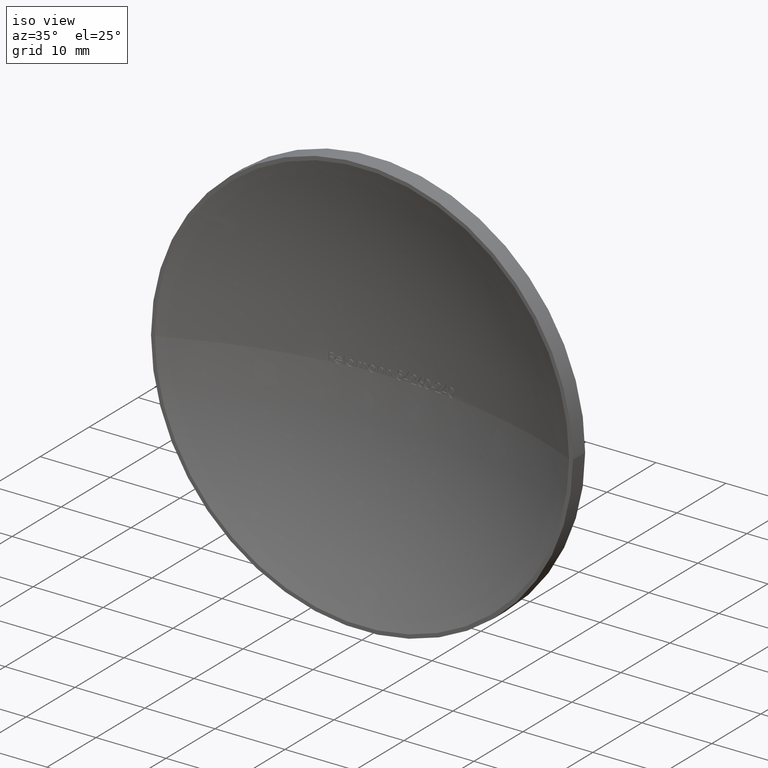
[diagram: clean part render]
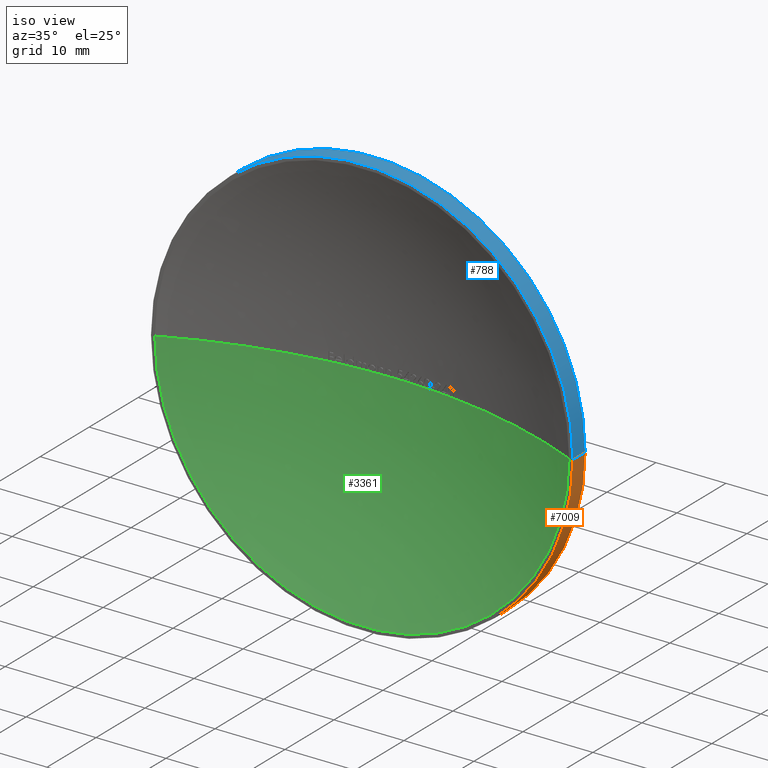
[diagram: same view with three faces highlighted in distinct colors, each labeled with its STEP entity id]
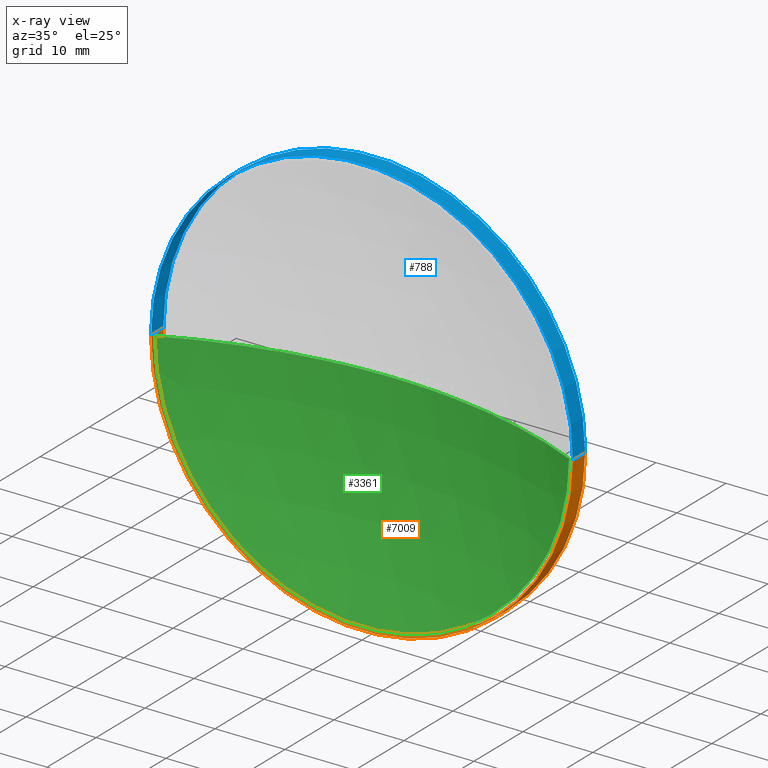
[diagram: x-ray of the same camera — body ghosted, the three highlighted faces saturated]
A machine part, iso view with three faces highlighted in distinct colors.
The next image is the same camera in x-ray (body ghosted, the three faces saturated) — at least one of them is partly hidden behind the body in this view.
Their STEP definitions:

[orange] entity #7009 — the highlighted cylindrical surface (partial cylindrical patch) has radius 30.15 mm, axis along (-0, -1, -0).
#357 = CARTESIAN_POINT ( 'NONE',  ( -30.15000000000003800, 6.500000000000230000, 3.692310099429274300E-015 ) ) ;
#377 = VECTOR ( 'NONE', #11874, 1000.000000000000000 ) ;
#419 = CARTESIAN_POINT ( 'NONE',  ( -30.15000000000010900, 4.747111756292559200E-013, 3.692310099429277500E-015 ) ) ;
#644 = EDGE_CURVE ( 'NONE', #5582, #7652, #9861, .T. ) ;
#654 = DIRECTION ( 'NONE',  ( 1.000000000000000000, -7.920025966713426600E-015, 0.0000000000000000000 ) ) ;
#686 = LINE ( 'NONE', #5067, #377 ) ;
#1200 = CYLINDRICAL_SURFACE ( 'NONE', #3360, 30.15000000000003800 ) ;
#1310 = CIRCLE ( 'NONE', #5299, 30.15000000000002000 ) ;
#1447 = ORIENTED_EDGE ( 'NONE', *, *, #11328, .F. ) ;
#1478 = DIRECTION ( 'NONE',  ( -7.920025966713426600E-015, -1.000000000000000000, -0.0000000000000000000 ) ) ;
#1965 = VECTOR ( 'NONE', #12309, 1000.000000000000000 ) ;
#3360 = AXIS2_PLACEMENT_3D ( 'NONE', #9065, #4063, #11121 ) ;
#3879 = ORIENTED_EDGE ( 'NONE', *, *, #12292, .T. ) ;
#4063 = DIRECTION ( 'NONE',  ( -7.920025966713426600E-015, -1.000000000000000000, -0.0000000000000000000 ) ) ;
#4182 = CARTESIAN_POINT ( 'NONE',  ( -3.168010386685173100E-014, 2.500000000000240700, 0.0000000000000000000 ) ) ;
#4389 = CIRCLE ( 'NONE', #12468, 30.15000000000005200 ) ;
#5067 = CARTESIAN_POINT ( 'NONE',  ( 30.15000000000003800, 6.499999999999753100, 0.0000000000000000000 ) ) ;
#5130 = DIRECTION ( 'NONE',  ( -7.920025966713426600E-015, -1.000000000000000000, -0.0000000000000000000 ) ) ;
#5291 = VERTEX_POINT ( 'NONE', #9368 ) ;
#5299 = AXIS2_PLACEMENT_3D ( 'NONE', #4182, #5130, #10182 ) ;
#5573 = CARTESIAN_POINT ( 'NONE',  ( -5.148016878363533900E-014, 2.359223927328457600E-013, 0.0000000000000000000 ) ) ;
#5582 = VERTEX_POINT ( 'NONE', #9519 ) ;
#6388 = VERTEX_POINT ( 'NONE', #8105 ) ;
#7009 = ADVANCED_FACE ( 'NONE', ( #10351 ), #1200, .T. ) ;
#7652 = VERTEX_POINT ( 'NONE', #419 ) ;
#7791 = ORIENTED_EDGE ( 'NONE', *, *, #11982, .T. ) ;
#8105 = CARTESIAN_POINT ( 'NONE',  ( 30.14999999999999900, -2.866390163564436000E-015, 0.0000000000000000000 ) ) ;
#9065 = CARTESIAN_POINT ( 'NONE',  ( 0.0000000000000000000, 6.499999999999992000, 0.0000000000000000000 ) ) ;
#9238 = EDGE_LOOP ( 'NONE', ( #9608, #7791, #3879, #1447 ) ) ;
#9368 = CARTESIAN_POINT ( 'NONE',  ( 30.14999999999998800, 2.500000000000001800, 0.0000000000000000000 ) ) ;
#9519 = CARTESIAN_POINT ( 'NONE',  ( -30.15000000000005200, 2.500000000000479600, 3.692310099429273600E-015 ) ) ;
#9608 = ORIENTED_EDGE ( 'NONE', *, *, #644, .F. ) ;
#9861 = LINE ( 'NONE', #357, #1965 ) ;
#10182 = DIRECTION ( 'NONE',  ( 1.000000000000000000, -7.925643741817744600E-015, 0.0000000000000000000 ) ) ;
#10351 = FACE_OUTER_BOUND ( 'NONE', #9238, .T. ) ;
#11121 = DIRECTION ( 'NONE',  ( 1.000000000000000000, -7.911259633393389300E-015, 0.0000000000000000000 ) ) ;
#11328 = EDGE_CURVE ( 'NONE', #7652, #6388, #4389, .T. ) ;
#11874 = DIRECTION ( 'NONE',  ( -7.920025966713426600E-015, -1.000000000000000000, -0.0000000000000000000 ) ) ;
#11982 = EDGE_CURVE ( 'NONE', #5582, #5291, #1310, .T. ) ;
#12292 = EDGE_CURVE ( 'NONE', #5291, #6388, #686, .T. ) ;
#12309 = DIRECTION ( 'NONE',  ( -7.920025966713426600E-015, -1.000000000000000000, -0.0000000000000000000 ) ) ;
#12468 = AXIS2_PLACEMENT_3D ( 'NONE', #5573, #1478, #654 ) ;

[blue] entity #788 — the highlighted cylindrical surface (partial cylindrical patch) has radius 30.15 mm, axis along (-0, -1, -0).
#329 = ORIENTED_EDGE ( 'NONE', *, *, #644, .T. ) ;
#357 = CARTESIAN_POINT ( 'NONE',  ( -30.15000000000003800, 6.500000000000230000, 3.692310099429274300E-015 ) ) ;
#377 = VECTOR ( 'NONE', #11874, 1000.000000000000000 ) ;
#419 = CARTESIAN_POINT ( 'NONE',  ( -30.15000000000010900, 4.747111756292559200E-013, 3.692310099429277500E-015 ) ) ;
#534 = AXIS2_PLACEMENT_3D ( 'NONE', #11966, #5035, #3065 ) ;
#644 = EDGE_CURVE ( 'NONE', #5582, #7652, #9861, .T. ) ;
#686 = LINE ( 'NONE', #5067, #377 ) ;
#788 = ADVANCED_FACE ( 'NONE', ( #10181 ), #3941, .T. ) ;
#1363 = AXIS2_PLACEMENT_3D ( 'NONE', #3979, #8891, #11900 ) ;
#1436 = EDGE_LOOP ( 'NONE', ( #8907, #329, #11580, #3680 ) ) ;
#1965 = VECTOR ( 'NONE', #12309, 1000.000000000000000 ) ;
#3065 = DIRECTION ( 'NONE',  ( 1.000000000000000000, -7.920025966713426600E-015, 0.0000000000000000000 ) ) ;
#3653 = EDGE_CURVE ( 'NONE', #6388, #7652, #10859, .T. ) ;
#3680 = ORIENTED_EDGE ( 'NONE', *, *, #12292, .F. ) ;
#3941 = CYLINDRICAL_SURFACE ( 'NONE', #7467, 30.15000000000003800 ) ;
#3979 = CARTESIAN_POINT ( 'NONE',  ( -3.168010386685173100E-014, 2.500000000000240700, 0.0000000000000000000 ) ) ;
#5035 = DIRECTION ( 'NONE',  ( -7.920025966713426600E-015, -1.000000000000000000, -0.0000000000000000000 ) ) ;
#5067 = CARTESIAN_POINT ( 'NONE',  ( 30.15000000000003800, 6.499999999999753100, 0.0000000000000000000 ) ) ;
#5222 = EDGE_CURVE ( 'NONE', #5291, #5582, #10215, .T. ) ;
#5291 = VERTEX_POINT ( 'NONE', #9368 ) ;
#5534 = DIRECTION ( 'NONE',  ( 1.000000000000000000, -7.911259633393389300E-015, 0.0000000000000000000 ) ) ;
#5582 = VERTEX_POINT ( 'NONE', #9519 ) ;
#5659 = DIRECTION ( 'NONE',  ( -7.920025966713426600E-015, -1.000000000000000000, -0.0000000000000000000 ) ) ;
#6388 = VERTEX_POINT ( 'NONE', #8105 ) ;
#6575 = CARTESIAN_POINT ( 'NONE',  ( 0.0000000000000000000, 6.499999999999992000, 0.0000000000000000000 ) ) ;
#7467 = AXIS2_PLACEMENT_3D ( 'NONE', #6575, #5659, #5534 ) ;
#7652 = VERTEX_POINT ( 'NONE', #419 ) ;
#8105 = CARTESIAN_POINT ( 'NONE',  ( 30.14999999999999900, -2.866390163564436000E-015, 0.0000000000000000000 ) ) ;
#8891 = DIRECTION ( 'NONE',  ( -7.920025966713426600E-015, -1.000000000000000000, -0.0000000000000000000 ) ) ;
#8907 = ORIENTED_EDGE ( 'NONE', *, *, #5222, .T. ) ;
#9368 = CARTESIAN_POINT ( 'NONE',  ( 30.14999999999998800, 2.500000000000001800, 0.0000000000000000000 ) ) ;
#9519 = CARTESIAN_POINT ( 'NONE',  ( -30.15000000000005200, 2.500000000000479600, 3.692310099429273600E-015 ) ) ;
#9861 = LINE ( 'NONE', #357, #1965 ) ;
#10181 = FACE_OUTER_BOUND ( 'NONE', #1436, .T. ) ;
#10215 = CIRCLE ( 'NONE', #1363, 30.15000000000002000 ) ;
#10859 = CIRCLE ( 'NONE', #534, 30.15000000000005200 ) ;
#11580 = ORIENTED_EDGE ( 'NONE', *, *, #3653, .F. ) ;
#11874 = DIRECTION ( 'NONE',  ( -7.920025966713426600E-015, -1.000000000000000000, -0.0000000000000000000 ) ) ;
#11900 = DIRECTION ( 'NONE',  ( 1.000000000000000000, -7.925643741817744600E-015, 0.0000000000000000000 ) ) ;
#11966 = CARTESIAN_POINT ( 'NONE',  ( -5.148016878363533900E-014, 2.359223927328457600E-013, 0.0000000000000000000 ) ) ;
#12292 = EDGE_CURVE ( 'NONE', #5291, #6388, #686, .T. ) ;
#12309 = DIRECTION ( 'NONE',  ( -7.920025966713426600E-015, -1.000000000000000000, -0.0000000000000000000 ) ) ;

[green] entity #3361 — the highlighted spherical surface has radius 70.6748 mm.
#12 = CIRCLE ( 'NONE', #3420, 29.60612267758144600 ) ;
#37 = AXIS2_PLACEMENT_3D ( 'NONE', #7601, #12365, #9501 ) ;
#55 = VERTEX_POINT ( 'NONE', #6366 ) ;
#60 = DIRECTION ( 'NONE',  ( 1.000000000000000000, 0.0000000000000000000, 0.0000000000000000000 ) ) ;
#69 = AXIS2_PLACEMENT_3D ( 'NONE', #1477, #6442, #8453 ) ;
#147 = AXIS2_PLACEMENT_3D ( 'NONE', #6127, #1375, #6170 ) ;
#177 = VERTEX_POINT ( 'NONE', #9717 ) ;
#193 = VERTEX_POINT ( 'NONE', #11828 ) ;
#201 = CARTESIAN_POINT ( 'NONE',  ( 0.7432971088068091000, 6.496086225058660600, -0.03002700844221619900 ) ) ;
#212 = DIRECTION ( 'NONE',  ( 0.0000000000000000000, -0.0000000000000000000, 1.000000000000000000 ) ) ;
#222 = CARTESIAN_POINT ( 'NONE',  ( -7.612335987580117100, 6.088842195093688400, -0.01696047008547008400 ) ) ;
#229 = EDGE_CURVE ( 'NONE', #7349, #5940, #10811, .T. ) ;
#234 = VERTEX_POINT ( 'NONE', #5775 ) ;
#238 = VERTEX_POINT ( 'NONE', #3903 ) ;
#246 = DIRECTION ( 'NONE',  ( 0.0000000000000000000, 0.0000000000000000000, 1.000000000000000000 ) ) ;
#280 = AXIS2_PLACEMENT_3D ( 'NONE', #10289, #3601, #6507 ) ;
#316 = ORIENTED_EDGE ( 'NONE', *, *, #11505, .T. ) ;
#326 = CARTESIAN_POINT ( 'NONE',  ( -7.597597577532804200, 6.090437716854105500, -0.01662985309535127500 ) ) ;
#352 = CARTESIAN_POINT ( 'NONE',  ( 6.979233440170952800, 6.154551347372693800, 5.741908295601966100E-015 ) ) ;
#362 = DIRECTION ( 'NONE',  ( 1.000000000000000000, 0.0000000000000000000, 0.0000000000000000000 ) ) ;
#390 = CIRCLE ( 'NONE', #1342, 70.67480769230762400 ) ;
#507 = CARTESIAN_POINT ( 'NONE',  ( 3.789778726380941700, 6.398321008282907000, -0.01938917905373024200 ) ) ;
#532 = CIRCLE ( 'NONE', #1929, 70.67480769230762400 ) ;
#663 = VERTEX_POINT ( 'NONE', #7242 ) ;
#766 = CIRCLE ( 'NONE', #4168, 70.67480769230762400 ) ;
#779 = CARTESIAN_POINT ( 'NONE',  ( 1.980006491678358300E-014, -64.17480769230762400, 0.0000000000000000000 ) ) ;
#893 = CARTESIAN_POINT ( 'NONE',  ( 1.980006491678358300E-014, -64.17480769230762400, 0.0000000000000000000 ) ) ;
#927 = EDGE_CURVE ( 'NONE', #12748, #11778, #6079, .T. ) ;
#928 = CIRCLE ( 'NONE', #10319, 70.67480769230762400 ) ;
#966 = CARTESIAN_POINT ( 'NONE',  ( 0.8666965366530248200, 6.494685670802756100, -0.03126080460573747000 ) ) ;
#983 = AXIS2_PLACEMENT_3D ( 'NONE', #10823, #5869, #12729 ) ;
#996 = B_SPLINE_CURVE_WITH_KNOTS ( 'NONE', 3,
 ( #11571, #6520, #11531, #5479 ),
 .UNSPECIFIED., .F., .F.,
 ( 4, 4 ),
 ( 0.8208945495405529600, 1.000000000000000000 ),
 .UNSPECIFIED. ) ;
#1098 = CARTESIAN_POINT ( 'NONE',  ( 0.9605257596267269300, 6.493478596770718700, -0.01174405390490025100 ) ) ;
#1115 = VERTEX_POINT ( 'NONE', #1932 ) ;
#1147 = CARTESIAN_POINT ( 'NONE',  ( 0.6348561559434808800, 6.497148484366501700, 8.342417999089791100E-006 ) ) ;
#1218 = CARTESIAN_POINT ( 'NONE',  ( 1.980006491678358300E-014, -64.17480769230762400, 0.0000000000000000000 ) ) ;
#1252 = EDGE_CURVE ( 'NONE', #10793, #12748, #2874, .T. ) ;
#1263 = CARTESIAN_POINT ( 'NONE',  ( 2.145499465811979300, 6.467426660711428400, 4.194215356583184500E-015 ) ) ;
#1277 = CARTESIAN_POINT ( 'NONE',  ( -7.469789810218279600, 6.104141256827904100, 2.134701409049082200E-006 ) ) ;
#1303 = CARTESIAN_POINT ( 'NONE',  ( -5.918559522339771600, 6.251747048900874400, -0.005846938975923391000 ) ) ;
#1342 = AXIS2_PLACEMENT_3D ( 'NONE', #4948, #8909, #7000 ) ;
#1361 = CARTESIAN_POINT ( 'NONE',  ( -7.612335987580117100, 6.088842195093688400, -0.01696047008547008400 ) ) ;
#1373 = DIRECTION ( 'NONE',  ( 1.000000000000000000, 0.0000000000000000000, 0.0000000000000000000 ) ) ;
#1375 = DIRECTION ( 'NONE',  ( 0.0000000000000000000, -0.0000000000000000000, 1.000000000000000000 ) ) ;
#1449 = DIRECTION ( 'NONE',  ( 0.0000000000000000000, 0.0000000000000000000, 1.000000000000000000 ) ) ;
#1477 = CARTESIAN_POINT ( 'NONE',  ( 1.980006491678358300E-014, -64.17480769230762400, 0.0000000000000000000 ) ) ;
#1504 = EDGE_CURVE ( 'NONE', #6167, #9530, #12038, .T. ) ;
#1588 = EDGE_CURVE ( 'NONE', #5552, #4725, #7682, .T. ) ;
#1595 = CARTESIAN_POINT ( 'NONE',  ( -3.807625534188031400, 6.397357005511181200, 5.761731707072241700E-015 ) ) ;
#1605 = CARTESIAN_POINT ( 'NONE',  ( 8.447134629730895100, 5.993396655405951500, -0.02279006732365385100 ) ) ;
#1673 = CARTESIAN_POINT ( 'NONE',  ( 8.719373689908712400, 5.960069083712832900, 1.988234235012545900E-005 ) ) ;
#1774 = DIRECTION ( 'NONE',  ( 0.0000000000000000000, -0.0000000000000000000, 1.000000000000000000 ) ) ;
#1859 = DIRECTION ( 'NONE',  ( 1.000000000000000000, 0.0000000000000000000, 0.0000000000000000000 ) ) ;
#1860 = ORIENTED_EDGE ( 'NONE', *, *, #6062, .F. ) ;
#1882 = ORIENTED_EDGE ( 'NONE', *, *, #10819, .T. ) ;
#1906 = DIRECTION ( 'NONE',  ( 0.0000000000000000000, -0.0000000000000000000, 1.000000000000000000 ) ) ;
#1920 = CARTESIAN_POINT ( 'NONE',  ( -3.066134982638889300, 6.433456490827175000, -0.01696047008546997700 ) ) ;
#1921 = CARTESIAN_POINT ( 'NONE',  ( 0.9287028325944867200, 6.493901937073268900, -0.02055943171163479600 ) ) ;
#1929 = AXIS2_PLACEMENT_3D ( 'NONE', #9219, #10230, #11234 ) ;
#1932 = CARTESIAN_POINT ( 'NONE',  ( 0.8021772335737318300, 6.495439253634329700, -0.03392094017094020300 ) ) ;
#1962 = CARTESIAN_POINT ( 'NONE',  ( -3.159407415994759400, 6.429358067632239000, -0.01013932095497769800 ) ) ;
#1995 = CARTESIAN_POINT ( 'NONE',  ( -6.775707799145292800, 6.174451196221286700, 4.722542179420358400E-015 ) ) ;
#2007 = ORIENTED_EDGE ( 'NONE', *, *, #3539, .F. ) ;
#2008 = AXIS2_PLACEMENT_3D ( 'NONE', #5157, #10087, #8096 ) ;
#2024 = CARTESIAN_POINT ( 'NONE',  ( 4.071597726318756800, 6.382619445798855700, 1.734177897601664500E-006 ) ) ;
#2044 = DIRECTION ( 'NONE',  ( 0.0000000000000000000, 0.0000000000000000000, 1.000000000000000000 ) ) ;
#2063 = CARTESIAN_POINT ( 'NONE',  ( 3.961710103109255900, 6.388870031433351700, -0.03024174569911977600 ) ) ;
#2099 = AXIS2_PLACEMENT_3D ( 'NONE', #8088, #9070, #6120 ) ;
#2120 = CARTESIAN_POINT ( 'NONE',  ( 0.6348561559434808800, 6.497148484366501700, 8.342417999089791100E-006 ) ) ;
#2124 = CIRCLE ( 'NONE', #7027, 70.67480769230762400 ) ;
#2161 = DIRECTION ( 'NONE',  ( -1.000000000000000000, 0.0000000000000000000, 1.224646799147353200E-016 ) ) ;
#2186 = EDGE_CURVE ( 'NONE', #11778, #2950, #2668, .T. ) ;
#2215 = DIRECTION ( 'NONE',  ( -1.224646799147353200E-016, 9.699234449299519100E-031, -1.000000000000000000 ) ) ;
#2250 = VERTEX_POINT ( 'NONE', #9588 ) ;
#2253 = CARTESIAN_POINT ( 'NONE',  ( 1.980006491678358300E-014, -64.17480769230762400, 0.0000000000000000000 ) ) ;
#2312 = DIRECTION ( 'NONE',  ( 0.0000000000000000000, -0.0000000000000000000, 1.000000000000000000 ) ) ;
#2340 = CARTESIAN_POINT ( 'NONE',  ( -5.895896261122464600, 6.253644220154492400, -2.686373471526520200E-006 ) ) ;
#2359 = VERTEX_POINT ( 'NONE', #1995 ) ;
#2374 = CARTESIAN_POINT ( 'NONE',  ( -3.926348824786320500, 6.390851287473492600, 2.404195260305623200E-016 ) ) ;
#2407 = DIRECTION ( 'NONE',  ( 1.000000000000000000, 0.0000000000000000000, 0.0000000000000000000 ) ) ;
#2458 = AXIS2_PLACEMENT_3D ( 'NONE', #1218, #10986, #5003 ) ;
#2481 = CARTESIAN_POINT ( 'NONE',  ( 8.719373689908712400, 5.960069083712832900, 1.988234235012545900E-005 ) ) ;
#2510 = DIRECTION ( 'NONE',  ( 0.0000000000000000000, 0.0000000000000000000, 1.000000000000000000 ) ) ;
#2527 = ORIENTED_EDGE ( 'NONE', *, *, #10238, .T. ) ;
#2539 = VERTEX_POINT ( 'NONE', #10191 ) ;
#2578 = CARTESIAN_POINT ( 'NONE',  ( 29.60612267758139300, -1.467955616396510900E-016, -3.625704337226327700E-015 ) ) ;
#2586 = CARTESIAN_POINT ( 'NONE',  ( 1.980006491678358300E-014, -64.17480769230762400, 0.0000000000000000000 ) ) ;
#2668 = B_SPLINE_CURVE_WITH_KNOTS ( 'NONE', 3,
 ( #1920, #9702, #1962, #3930 ),
 .UNSPECIFIED., .F., .F.,
 ( 4, 4 ),
 ( 0.0000000000000000000, 0.1699217220953719000 ),
 .UNSPECIFIED. ) ;
#2719 = CARTESIAN_POINT ( 'NONE',  ( -6.034217247596139100, 6.241925950314077400, -0.01696047008547018800 ) ) ;
#2729 = CIRCLE ( 'NONE', #6434, 70.67480769230762400 ) ;
#2743 = CARTESIAN_POINT ( 'NONE',  ( -5.520633012820501200, 6.284053024300767700, 5.752481216544243100E-015 ) ) ;
#2748 = CARTESIAN_POINT ( 'NONE',  ( 8.557882194845097600, 5.979949409785145800, -0.03392094017093954400 ) ) ;
#2749 = AXIS2_PLACEMENT_3D ( 'NONE', #9664, #12800, #4700 ) ;
#2796 = ORIENTED_EDGE ( 'NONE', *, *, #5058, .T. ) ;
#2824 = ORIENTED_EDGE ( 'NONE', *, *, #6905, .T. ) ;
#2863 = CIRCLE ( 'NONE', #5866, 70.67480769230762400 ) ;
#2874 = CIRCLE ( 'NONE', #8873, 70.67480769230762400 ) ;
#2912 = ORIENTED_EDGE ( 'NONE', *, *, #3421, .T. ) ;
#2922 = CARTESIAN_POINT ( 'NONE',  ( 6.080328525641038900, 6.237961372436162200, 3.142820007155299600E-016 ) ) ;
#2923 = VERTEX_POINT ( 'NONE', #3577 ) ;
#2950 = VERTEX_POINT ( 'NONE', #5431 ) ;
#3000 = CARTESIAN_POINT ( 'NONE',  ( 4.044990298365578800, 6.384154928913808600, -0.01128604861973320400 ) ) ;
#3047 = VERTEX_POINT ( 'NONE', #2743 ) ;
#3051 = DIRECTION ( 'NONE',  ( 1.000000000000000000, 0.0000000000000000000, 0.0000000000000000000 ) ) ;
#3074 = CARTESIAN_POINT ( 'NONE',  ( 1.980006491678358300E-014, -64.17480769230762400, 0.0000000000000000000 ) ) ;
#3126 = B_SPLINE_CURVE_WITH_KNOTS ( 'NONE', 3,
 ( #2748, #8570, #1605, #3735 ),
 .UNSPECIFIED., .F., .F.,
 ( 4, 4 ),
 ( 0.0000000000000000000, 0.1799260564459110300 ),
 .UNSPECIFIED. ) ;
#3138 = EDGE_CURVE ( 'NONE', #1115, #3706, #4065, .T. ) ;
#3173 = CIRCLE ( 'NONE', #11864, 70.67480769230762400 ) ;
#3208 = EDGE_CURVE ( 'NONE', #2950, #9823, #12096, .T. ) ;
#3234 = ORIENTED_EDGE ( 'NONE', *, *, #1252, .T. ) ;
#3243 = CARTESIAN_POINT ( 'NONE',  ( 1.980006491678358300E-014, -64.17480769230762400, 0.0000000000000000000 ) ) ;
#3253 = CARTESIAN_POINT ( 'NONE',  ( -7.582461841575047300, 6.092072800589575000, -0.01618391102057933600 ) ) ;
#3258 = CARTESIAN_POINT ( 'NONE',  ( 0.7312330698839069100, 6.496212959107993800, -0.02844723811180820500 ) ) ;
#3285 = EDGE_CURVE ( 'NONE', #5593, #3706, #8987, .T. ) ;
#3303 = CIRCLE ( 'NONE', #12715, 70.67480769230762400 ) ;
#3317 = CARTESIAN_POINT ( 'NONE',  ( 1.980006491678358300E-014, -64.17480769230762400, 0.0000000000000000000 ) ) ;
#3332 = CIRCLE ( 'NONE', #12275, 70.67480769230762400 ) ;
#3347 = DIRECTION ( 'NONE',  ( 1.000000000000000000, 0.0000000000000000000, 0.0000000000000000000 ) ) ;
#3361 = ADVANCED_FACE ( 'NONE', ( #5250 ), #7294, .F. ) ;
#3370 = CARTESIAN_POINT ( 'NONE',  ( -6.018970610495895100, 6.243232564667778200, -0.01660703882190717900 ) ) ;
#3387 = CARTESIAN_POINT ( 'NONE',  ( -7.491028658071068800, 6.101883950059564300, -0.005539370486328064700 ) ) ;
#3402 = CIRCLE ( 'NONE', #7420, 70.67480769230762400 ) ;
#3420 = AXIS2_PLACEMENT_3D ( 'NONE', #10807, #12709, #10674 ) ;
#3421 = EDGE_CURVE ( 'NONE', #193, #11004, #12, .T. ) ;
#3455 = EDGE_CURVE ( 'NONE', #12322, #5940, #3402, .T. ) ;
#3485 = VERTEX_POINT ( 'NONE', #4866 ) ;
#3526 = CARTESIAN_POINT ( 'NONE',  ( 3.832672759743563700, 6.395997221543864500, -0.02772034739002827600 ) ) ;
#3539 = EDGE_CURVE ( 'NONE', #663, #9942, #8053, .T. ) ;
#3577 = CARTESIAN_POINT ( 'NONE',  ( 4.071597726318756800, 6.382619445798855700, 1.734177897601664500E-006 ) ) ;
#3579 = CARTESIAN_POINT ( 'NONE',  ( 5.752187931813008700E-013, 6.499999999999992000, 0.0000000000000000000 ) ) ;
#3599 = B_SPLINE_CURVE_WITH_KNOTS ( 'NONE', 3,
 ( #7328, #11366, #5392, #5215 ),
 .UNSPECIFIED., .F., .F.,
 ( 4, 4 ),
 ( 0.0000000000000000000, 0.1807836206128917400 ),
 .UNSPECIFIED. ) ;
#3601 = DIRECTION ( 'NONE',  ( -1.224646799147353200E-016, 9.699234449299519100E-031, -1.000000000000000000 ) ) ;
#3681 = VERTEX_POINT ( 'NONE', #10969 ) ;
#3694 = ORIENTED_EDGE ( 'NONE', *, *, #4530, .T. ) ;
#3706 = VERTEX_POINT ( 'NONE', #2120 ) ;
#3730 = ORIENTED_EDGE ( 'NONE', *, *, #229, .F. ) ;
#3735 = CARTESIAN_POINT ( 'NONE',  ( 8.397072076991543500, 5.999387096541195100, 7.579719683355627600E-006 ) ) ;
#3811 = CIRCLE ( 'NONE', #11256, 70.67480769230762400 ) ;
#3855 = DIRECTION ( 'NONE',  ( 1.000000000000000000, 0.0000000000000000000, 0.0000000000000000000 ) ) ;
#3891 = ORIENTED_EDGE ( 'NONE', *, *, #7541, .T. ) ;
#3903 = CARTESIAN_POINT ( 'NONE',  ( -1.551883012820509700, 6.482959760812367900, 9.502542821512497700E-017 ) ) ;
#3917 = CARTESIAN_POINT ( 'NONE',  ( -3.066134982638889300, 6.433456490827175000, -0.01696047008546997700 ) ) ;
#3930 = CARTESIAN_POINT ( 'NONE',  ( -3.199807662969143900, 6.427526980238331700, -3.062719859035654400E-008 ) ) ;
#3958 = EDGE_CURVE ( 'NONE', #6524, #10793, #10686, .T. ) ;
#3977 = CIRCLE ( 'NONE', #7106, 70.67480769230762400 ) ;
#4046 = VERTEX_POINT ( 'NONE', #4502 ) ;
#4065 = B_SPLINE_CURVE_WITH_KNOTS ( 'NONE', 3,
 ( #4936, #7210, #12028, #201, #3258, #4159, #7078, #1147 ),
 .UNSPECIFIED., .F., .F.,
 ( 4, 2, 2, 4 ),
 ( 0.0000000000000000000, 0.07062300574870188100, 0.1412460114974037600, 0.2824920229948075200 ),
 .UNSPECIFIED. ) ;
#4132 = CIRCLE ( 'NONE', #37, 70.67480769230762400 ) ;
#4136 = DIRECTION ( 'NONE',  ( 0.0000000000000000000, -0.0000000000000000000, 1.000000000000000000 ) ) ;
#4159 = CARTESIAN_POINT ( 'NONE',  ( 0.6866697530600167600, 6.496667753425557900, -0.01999454976517739700 ) ) ;
#4168 = AXIS2_PLACEMENT_3D ( 'NONE', #3317, #2510, #6482 ) ;
#4174 = CARTESIAN_POINT ( 'NONE',  ( 1.980006491678358300E-014, -64.17480769230762400, 0.0000000000000000000 ) ) ;
#4189 = EDGE_CURVE ( 'NONE', #7621, #12188, #928, .T. ) ;
#4221 = EDGE_CURVE ( 'NONE', #11304, #2250, #11318, .T. ) ;
#4224 = CARTESIAN_POINT ( 'NONE',  ( -5.941301666843438400, 6.249831626294389200, -0.01010928989915303400 ) ) ;
#4338 = DIRECTION ( 'NONE',  ( 0.0000000000000000000, -0.0000000000000000000, 1.000000000000000000 ) ) ;
#4356 = EDGE_CURVE ( 'NONE', #663, #234, #766, .T. ) ;
#4361 = DIRECTION ( 'NONE',  ( 1.000000000000000000, 0.0000000000000000000, 0.0000000000000000000 ) ) ;
#4366 = ORIENTED_EDGE ( 'NONE', *, *, #4941, .T. ) ;
#4367 = CARTESIAN_POINT ( 'NONE',  ( 1.980006491678358300E-014, -64.17480769230762400, 0.0000000000000000000 ) ) ;
#4373 = CARTESIAN_POINT ( 'NONE',  ( -6.127789460059586800, 6.233858368988970600, -0.01005654314054566100 ) ) ;
#4382 = CARTESIAN_POINT ( 'NONE',  ( -3.066134982638889300, 6.433456490827175000, -0.01696047008546997700 ) ) ;
#4421 = DIRECTION ( 'NONE',  ( 1.000000000000000000, 0.0000000000000000000, 0.0000000000000000000 ) ) ;
#4502 = CARTESIAN_POINT ( 'NONE',  ( -5.130542200854698400, 6.313531620446177300, 5.754887941105098200E-015 ) ) ;
#4517 = ORIENTED_EDGE ( 'NONE', *, *, #9291, .T. ) ;
#4530 = EDGE_CURVE ( 'NONE', #12188, #6524, #7581, .T. ) ;
#4586 = AXIS2_PLACEMENT_3D ( 'NONE', #5204, #6220, #11137 ) ;
#4610 = CIRCLE ( 'NONE', #10838, 70.67480769230762400 ) ;
#4659 = AXIS2_PLACEMENT_3D ( 'NONE', #12120, #8349, #1373 ) ;
#4671 = ORIENTED_EDGE ( 'NONE', *, *, #10538, .T. ) ;
#4683 = CARTESIAN_POINT ( 'NONE',  ( 1.980006491678358300E-014, -64.17480769230762400, 0.0000000000000000000 ) ) ;
#4700 = DIRECTION ( 'NONE',  ( -1.000000000000000000, 7.854446731985910300E-015, 0.0000000000000000000 ) ) ;
#4725 = VERTEX_POINT ( 'NONE', #12563 ) ;
#4731 = CIRCLE ( 'NONE', #4586, 70.67480769230762400 ) ;
#4763 = EDGE_CURVE ( 'NONE', #12090, #9942, #3126, .T. ) ;
#4775 = CARTESIAN_POINT ( 'NONE',  ( -2.927784680547629700, 6.439330469870645500, 8.162212446696865900E-007 ) ) ;
#4857 = B_SPLINE_CURVE_WITH_KNOTS ( 'NONE', 3,
 ( #1277, #3387, #9324, #8210, #9196, #3253, #10199, #326, #10244, #1361 ),
 .UNSPECIFIED., .F., .F.,
 ( 4, 2, 2, 2, 4 ),
 ( 0.7366951702556031600, 0.8683475851277967500, 0.9341737925638962100, 0.9670868962819481100, 1.000000000000000000 ),
 .UNSPECIFIED. ) ;
#4863 = CARTESIAN_POINT ( 'NONE',  ( 1.980006491678358300E-014, -64.17480769230762400, 0.0000000000000000000 ) ) ;
#4866 = CARTESIAN_POINT ( 'NONE',  ( -0.3137686965811895000, 6.499303490994204700, 4.346753993657812300E-015 ) ) ;
#4903 = CIRCLE ( 'NONE', #5931, 70.67480769230762400 ) ;
#4918 = CARTESIAN_POINT ( 'NONE',  ( 1.980006491678358300E-014, -64.17480769230762400, 0.0000000000000000000 ) ) ;
#4920 = AXIS2_PLACEMENT_3D ( 'NONE', #4863, #1906, #9911 ) ;
#4936 = CARTESIAN_POINT ( 'NONE',  ( 0.8021772335737318300, 6.495439253634329700, -0.03392094017094020300 ) ) ;
#4941 = EDGE_CURVE ( 'NONE', #11637, #2250, #6784, .T. ) ;
#4948 = CARTESIAN_POINT ( 'NONE',  ( 1.980006491678358300E-014, -64.17480769230762400, 0.0000000000000000000 ) ) ;
#4989 = ORIENTED_EDGE ( 'NONE', *, *, #1504, .T. ) ;
#4991 = CARTESIAN_POINT ( 'NONE',  ( -2.973094829590620300, 6.437440509297275100, -0.01009264785247987800 ) ) ;
#5003 = DIRECTION ( 'NONE',  ( -1.000000000000000000, 0.0000000000000000000, 1.224646799147353200E-016 ) ) ;
#5014 = EDGE_CURVE ( 'NONE', #11304, #6186, #4610, .T. ) ;
#5024 = CARTESIAN_POINT ( 'NONE',  ( 3.934374695964648600, 6.390397152729354600, -0.03246073347867449400 ) ) ;
#5058 = EDGE_CURVE ( 'NONE', #11689, #10567, #11729, .T. ) ;
#5068 = CARTESIAN_POINT ( 'NONE',  ( -1.433159722222218300, 6.485467537521924600, 5.768925325805451100E-015 ) ) ;
#5069 = CARTESIAN_POINT ( 'NONE',  ( -5.895896261122464600, 6.253644220154492400, -2.686373471526520200E-006 ) ) ;
#5087 = AXIS2_PLACEMENT_3D ( 'NONE', #7382, #2312, #12279 ) ;
#5129 = ORIENTED_EDGE ( 'NONE', *, *, #11246, .T. ) ;
#5157 = CARTESIAN_POINT ( 'NONE',  ( 1.980006491678358300E-014, -64.17480769230762400, 0.0000000000000000000 ) ) ;
#5167 = CIRCLE ( 'NONE', #6278, 70.67480769230762400 ) ;
#5196 = CARTESIAN_POINT ( 'NONE',  ( 1.980006491678358300E-014, -64.17480769230762400, 0.0000000000000000000 ) ) ;
#5203 = CARTESIAN_POINT ( 'NONE',  ( 1.980006491678358300E-014, -64.17480769230762400, 0.0000000000000000000 ) ) ;
#5204 = CARTESIAN_POINT ( 'NONE',  ( 1.980006491678358300E-014, -64.17480769230762400, 0.0000000000000000000 ) ) ;
#5215 = CARTESIAN_POINT ( 'NONE',  ( -7.752145874483282700, 6.073556293597578200, 3.697858070267607500E-007 ) ) ;
#5220 = DIRECTION ( 'NONE',  ( 1.000000000000000000, 0.0000000000000000000, 0.0000000000000000000 ) ) ;
#5242 = AXIS2_PLACEMENT_3D ( 'NONE', #4174, #10174, #2161 ) ;
#5250 = FACE_OUTER_BOUND ( 'NONE', #6262, .T. ) ;
#5254 = B_SPLINE_CURVE_WITH_KNOTS ( 'NONE', 3,
 ( #2024, #3000, #6001, #6996, #2063, #11003, #5024, #11993, #6041, #10824 ),
 .UNSPECIFIED., .F., .F.,
 ( 4, 2, 2, 2, 4 ),
 ( 0.7312959206653617500, 0.8656479603326788800, 0.9328239801663375000, 0.9664119900831686900, 1.000000000000000000 ),
 .UNSPECIFIED. ) ;
#5274 = CARTESIAN_POINT ( 'NONE',  ( 4.733604537876107800, 6.341299841635783500, 8.809292103639234900E-006 ) ) ;
#5282 = DIRECTION ( 'NONE',  ( 0.0000000000000000000, 0.0000000000000000000, 1.000000000000000000 ) ) ;
#5287 = CARTESIAN_POINT ( 'NONE',  ( -7.469789810218279600, 6.104141256827904100, 2.134701409049082200E-006 ) ) ;
#5300 = EDGE_CURVE ( 'NONE', #2359, #177, #4132, .T. ) ;
#5315 = ORIENTED_EDGE ( 'NONE', *, *, #10133, .F. ) ;
#5322 = VERTEX_POINT ( 'NONE', #12281 ) ;
#5392 = CARTESIAN_POINT ( 'NONE',  ( -7.711050299521907000, 6.078091572032002800, -0.01015793486208855000 ) ) ;
#5421 = CARTESIAN_POINT ( 'NONE',  ( -6.034217247596139100, 6.241925950314077400, -0.01696047008547018800 ) ) ;
#5431 = CARTESIAN_POINT ( 'NONE',  ( -3.199807662969143900, 6.427526980238331700, -3.062719859035654400E-008 ) ) ;
#5470 = CARTESIAN_POINT ( 'NONE',  ( 3.738124019583524600, 6.401072499019553800, 1.006120926000910200E-006 ) ) ;
#5479 = CARTESIAN_POINT ( 'NONE',  ( 4.894420656383560200, 6.330312250522399400, -0.03392094017094027900 ) ) ;
#5552 = VERTEX_POINT ( 'NONE', #12578 ) ;
#5593 = VERTEX_POINT ( 'NONE', #3579 ) ;
#5648 = EDGE_CURVE ( 'NONE', #7349, #5552, #996, .T. ) ;
#5695 = DIRECTION ( 'NONE',  ( 1.000000000000000000, 0.0000000000000000000, 0.0000000000000000000 ) ) ;
#5724 = CARTESIAN_POINT ( 'NONE',  ( 1.980006491678358300E-014, -64.17480769230762400, 0.0000000000000000000 ) ) ;
#5729 = ORIENTED_EDGE ( 'NONE', *, *, #5890, .T. ) ;
#5756 = CARTESIAN_POINT ( 'NONE',  ( 8.397072076991543500, 5.999387096541195100, 7.579719683355627600E-006 ) ) ;
#5772 = ORIENTED_EDGE ( 'NONE', *, *, #8449, .T. ) ;
#5775 = CARTESIAN_POINT ( 'NONE',  ( 7.725494123931635000, 6.076492529722157700, -4.730500825351932100E-016 ) ) ;
#5823 = ORIENTED_EDGE ( 'NONE', *, *, #4189, .T. ) ;
#5859 = ORIENTED_EDGE ( 'NONE', *, *, #7112, .T. ) ;
#5866 = AXIS2_PLACEMENT_3D ( 'NONE', #2253, #12015, #9053 ) ;
#5869 = DIRECTION ( 'NONE',  ( -1.224646799147353200E-016, 9.699234449299519100E-031, -1.000000000000000000 ) ) ;
#5873 = VERTEX_POINT ( 'NONE', #8006 ) ;
#5890 = EDGE_CURVE ( 'NONE', #2923, #11689, #5254, .T. ) ;
#5931 = AXIS2_PLACEMENT_3D ( 'NONE', #6325, #7335, #10279 ) ;
#5935 = DIRECTION ( 'NONE',  ( 1.000000000000000000, 0.0000000000000000000, 0.0000000000000000000 ) ) ;
#5940 = VERTEX_POINT ( 'NONE', #2922 ) ;
#5959 = CARTESIAN_POINT ( 'NONE',  ( 1.980006491678358300E-014, -64.17480769230762400, 0.0000000000000000000 ) ) ;
#5964 = CARTESIAN_POINT ( 'NONE',  ( -6.167859163069798500, 6.230347966396641900, -2.520397770066697300E-006 ) ) ;
#6001 = CARTESIAN_POINT ( 'NONE',  ( 4.016551208454215400, 6.385777272421858400, -0.02016231639002420300 ) ) ;
#6041 = CARTESIAN_POINT ( 'NONE',  ( 3.912126228332885700, 6.391633807047139900, -0.03358536255982373000 ) ) ;
#6061 = DIRECTION ( 'NONE',  ( -1.224646799147353200E-016, 9.699234449299519100E-031, -1.000000000000000000 ) ) ;
#6062 = EDGE_CURVE ( 'NONE', #2923, #4725, #4903, .T. ) ;
#6064 = CARTESIAN_POINT ( 'NONE',  ( 1.980006491678358300E-014, -64.17480769230762400, 0.0000000000000000000 ) ) ;
#6079 = B_SPLINE_CURVE_WITH_KNOTS ( 'NONE', 3,
 ( #8915, #7973, #4991, #9047, #8058, #11014, #12008, #3917 ),
 .UNSPECIFIED., .F., .F.,
 ( 4, 2, 2, 4 ),
 ( 0.6915284463244284500, 0.8457642231622127800, 0.9228821115811063300, 1.000000000000000000 ),
 .UNSPECIFIED. ) ;
#6105 = VERTEX_POINT ( 'NONE', #2481 ) ;
#6120 = DIRECTION ( 'NONE',  ( 1.000000000000000000, 0.0000000000000000000, 0.0000000000000000000 ) ) ;
#6127 = CARTESIAN_POINT ( 'NONE',  ( 1.980006491678358300E-014, -64.17480769230762400, 0.0000000000000000000 ) ) ;
#6144 = ORIENTED_EDGE ( 'NONE', *, *, #10544, .T. ) ;
#6167 = VERTEX_POINT ( 'NONE', #7378 ) ;
#6170 = DIRECTION ( 'NONE',  ( 1.000000000000000000, 0.0000000000000000000, 0.0000000000000000000 ) ) ;
#6174 = DIRECTION ( 'NONE',  ( 1.000000000000000000, 0.0000000000000000000, 0.0000000000000000000 ) ) ;
#6186 = VERTEX_POINT ( 'NONE', #9654 ) ;
#6204 = CARTESIAN_POINT ( 'NONE',  ( 4.783619123127386400, 6.337942527504435700, -0.02276715584627344800 ) ) ;
#6217 = ORIENTED_EDGE ( 'NONE', *, *, #8717, .T. ) ;
#6220 = DIRECTION ( 'NONE',  ( 0.0000000000000000000, -0.0000000000000000000, 1.000000000000000000 ) ) ;
#6262 = EDGE_LOOP ( 'NONE', ( #12707, #9127, #4671, #5772, #8151, #4989, #2527, #12528, #5823, #3694, #7532, #3234, #11609, #11487, #10073, #2824, #4517, #316, #6674, #3891, #8257, #6217, #9215, #10618, #8375, #12838, #7286, #6144, #11824, #5129, #9339, #7676, #5859, #2912, #11202, #1882, #7540, #2007, #6428, #8544, #8673, #3730, #7315, #8957, #1860, #5729, #2796, #10690, #4366, #12726, #6673, #5315, #8066, #11779 ) ) ;
#6278 = AXIS2_PLACEMENT_3D ( 'NONE', #2586, #4338, #4421 ) ;
#6288 = DIRECTION ( 'NONE',  ( 1.000000000000000000, 0.0000000000000000000, 0.0000000000000000000 ) ) ;
#6292 = CIRCLE ( 'NONE', #5087, 70.67480769230762400 ) ;
#6293 = DIRECTION ( 'NONE',  ( 1.000000000000000000, 0.0000000000000000000, 0.0000000000000000000 ) ) ;
#6294 = VERTEX_POINT ( 'NONE', #9828 ) ;
#6321 = AXIS2_PLACEMENT_3D ( 'NONE', #4367, #1449, #362 ) ;
#6325 = CARTESIAN_POINT ( 'NONE',  ( 1.980006491678358300E-014, -64.17480769230762400, 0.0000000000000000000 ) ) ;
#6366 = CARTESIAN_POINT ( 'NONE',  ( -8.912727029914520900, 5.935760264562439700, 1.091494262885962200E-015 ) ) ;
#6428 = ORIENTED_EDGE ( 'NONE', *, *, #4356, .T. ) ;
#6434 = AXIS2_PLACEMENT_3D ( 'NONE', #9422, #5282, #6288 ) ;
#6442 = DIRECTION ( 'NONE',  ( 0.0000000000000000000, 0.0000000000000000000, 1.000000000000000000 ) ) ;
#6447 = VERTEX_POINT ( 'NONE', #2374 ) ;
#6482 = DIRECTION ( 'NONE',  ( 1.000000000000000000, 0.0000000000000000000, 0.0000000000000000000 ) ) ;
#6507 = DIRECTION ( 'NONE',  ( -1.000000000000000000, 0.0000000000000000000, 1.224646799147353200E-016 ) ) ;
#6520 = CARTESIAN_POINT ( 'NONE',  ( 5.005381685822393400, 6.322548019258323200, -0.02261906868558793300 ) ) ;
#6524 = VERTEX_POINT ( 'NONE', #10178 ) ;
#6580 = VERTEX_POINT ( 'NONE', #2719 ) ;
#6673 = ORIENTED_EDGE ( 'NONE', *, *, #5014, .T. ) ;
#6674 = ORIENTED_EDGE ( 'NONE', *, *, #12050, .T. ) ;
#6781 = CARTESIAN_POINT ( 'NONE',  ( 1.980006491678358300E-014, -64.17480769230762400, 0.0000000000000000000 ) ) ;
#6784 = CIRCLE ( 'NONE', #4659, 70.67480769230762400 ) ;
#6788 = EDGE_CURVE ( 'NONE', #6294, #5322, #4731, .T. ) ;
#6820 = EDGE_CURVE ( 'NONE', #12322, #234, #12534, .T. ) ;
#6895 = DIRECTION ( 'NONE',  ( 1.000000000000000000, 0.0000000000000000000, 0.0000000000000000000 ) ) ;
#6905 = EDGE_CURVE ( 'NONE', #9823, #6447, #3811, .T. ) ;
#6928 = AXIS2_PLACEMENT_3D ( 'NONE', #7348, #9288, #3347 ) ;
#6996 = CARTESIAN_POINT ( 'NONE',  ( 3.975043410062260500, 6.388120712989892700, -0.02840227037059996800 ) ) ;
#7000 = DIRECTION ( 'NONE',  ( 1.000000000000000000, 0.0000000000000000000, 0.0000000000000000000 ) ) ;
#7021 = DIRECTION ( 'NONE',  ( 0.0000000000000000000, 0.0000000000000000000, 1.000000000000000000 ) ) ;
#7027 = AXIS2_PLACEMENT_3D ( 'NONE', #8328, #12353, #4361 ) ;
#7054 = CIRCLE ( 'NONE', #147, 70.67480769230762400 ) ;
#7078 = CARTESIAN_POINT ( 'NONE',  ( 0.6620931461427724800, 6.496903884043193000, -0.01235860582439008600 ) ) ;
#7106 = AXIS2_PLACEMENT_3D ( 'NONE', #5959, #8991, #3051 ) ;
#7112 = EDGE_CURVE ( 'NONE', #55, #193, #6292, .T. ) ;
#7157 = EDGE_CURVE ( 'NONE', #9569, #11983, #4857, .T. ) ;
#7210 = CARTESIAN_POINT ( 'NONE',  ( 0.7862022138398960800, 6.495620738237621000, -0.03360359651092184600 ) ) ;
#7242 = CARTESIAN_POINT ( 'NONE',  ( 7.844217414529928200, 6.063335047219946500, 3.820526046774904400E-015 ) ) ;
#7286 = ORIENTED_EDGE ( 'NONE', *, *, #5300, .T. ) ;
#7294 = SPHERICAL_SURFACE ( 'NONE', #2749, 70.67480769230762400 ) ;
#7315 = ORIENTED_EDGE ( 'NONE', *, *, #5648, .T. ) ;
#7328 = CARTESIAN_POINT ( 'NONE',  ( -7.612335987580117100, 6.088842195093688400, -0.01696047008547008400 ) ) ;
#7335 = DIRECTION ( 'NONE',  ( -1.224646799147353200E-016, 9.699234449299519100E-031, -1.000000000000000000 ) ) ;
#7348 = CARTESIAN_POINT ( 'NONE',  ( 1.980006491678358300E-014, -64.17480769230762400, 0.0000000000000000000 ) ) ;
#7349 = VERTEX_POINT ( 'NONE', #12183 ) ;
#7378 = CARTESIAN_POINT ( 'NONE',  ( -1.161792200854693900, 6.490450258305538800, 0.0000000000000000000 ) ) ;
#7382 = CARTESIAN_POINT ( 'NONE',  ( 1.980006491678358300E-014, -64.17480769230762400, 0.0000000000000000000 ) ) ;
#7420 = AXIS2_PLACEMENT_3D ( 'NONE', #9930, #7021, #60 ) ;
#7532 = ORIENTED_EDGE ( 'NONE', *, *, #3958, .T. ) ;
#7540 = ORIENTED_EDGE ( 'NONE', *, *, #4763, .T. ) ;
#7541 = EDGE_CURVE ( 'NONE', #4046, #7867, #2729, .T. ) ;
#7559 = EDGE_CURVE ( 'NONE', #6580, #9533, #11247, .T. ) ;
#7581 = CIRCLE ( 'NONE', #11338, 70.67480769230762400 ) ;
#7582 = CARTESIAN_POINT ( 'NONE',  ( -2.281183226495723500, 6.463175329801794400, 0.0000000000000000000 ) ) ;
#7601 = CARTESIAN_POINT ( 'NONE',  ( 1.980006491678358300E-014, -64.17480769230762400, 0.0000000000000000000 ) ) ;
#7621 = VERTEX_POINT ( 'NONE', #8301 ) ;
#7651 = EDGE_CURVE ( 'NONE', #5322, #55, #7705, .T. ) ;
#7663 = B_SPLINE_CURVE_WITH_KNOTS ( 'NONE', 3,
 ( #2340, #1303, #4224, #11272, #9308, #9181, #3370, #10359 ),
 .UNSPECIFIED., .F., .F.,
 ( 4, 2, 2, 4 ),
 ( 0.6914062899946535900, 0.8457031449973295700, 0.9228515724986647900, 1.000000000000000000 ),
 .UNSPECIFIED. ) ;
#7676 = ORIENTED_EDGE ( 'NONE', *, *, #7651, .T. ) ;
#7682 = B_SPLINE_CURVE_WITH_KNOTS ( 'NONE', 3,
 ( #10284, #10156, #6204, #5274 ),
 .UNSPECIFIED., .F., .F.,
 ( 4, 4 ),
 ( 0.0000000000000000000, 0.1792697920654122700 ),
 .UNSPECIFIED. ) ;
#7705 = CIRCLE ( 'NONE', #6928, 70.67480769230762400 ) ;
#7721 = CIRCLE ( 'NONE', #8366, 70.67480769230762400 ) ;
#7807 = EDGE_CURVE ( 'NONE', #11637, #10567, #8327, .T. ) ;
#7867 = VERTEX_POINT ( 'NONE', #10107 ) ;
#7895 = CARTESIAN_POINT ( 'NONE',  ( 1.980006491678358300E-014, -64.17480769230762400, 0.0000000000000000000 ) ) ;
#7973 = CARTESIAN_POINT ( 'NONE',  ( -2.950170198854486200, 6.438402404136957600, -0.005777308721788411300 ) ) ;
#7998 = EDGE_CURVE ( 'NONE', #7867, #3047, #8343, .T. ) ;
#8006 = CARTESIAN_POINT ( 'NONE',  ( -5.639356303418789000, 6.274650097144202300, 3.453109823116986100E-016 ) ) ;
#8053 = CIRCLE ( 'NONE', #12071, 70.67480769230762400 ) ;
#8058 = CARTESIAN_POINT ( 'NONE',  ( -3.016294800138370000, 6.435604441567582200, -0.01493387833222995800 ) ) ;
#8066 = ORIENTED_EDGE ( 'NONE', *, *, #8583, .T. ) ;
#8088 = CARTESIAN_POINT ( 'NONE',  ( 1.980006491678358300E-014, -64.17480769230762400, 0.0000000000000000000 ) ) ;
#8096 = DIRECTION ( 'NONE',  ( -1.000000000000000000, 0.0000000000000000000, 1.224646799147353200E-016 ) ) ;
#8134 = CARTESIAN_POINT ( 'NONE',  ( 3.738124019583524600, 6.401072499019553800, 1.006120926000910200E-006 ) ) ;
#8151 = ORIENTED_EDGE ( 'NONE', *, *, #8809, .T. ) ;
#8210 = CARTESIAN_POINT ( 'NONE',  ( -7.552284249472175600, 6.095323822795442900, -0.01445473544118448300 ) ) ;
#8222 = DIRECTION ( 'NONE',  ( 0.0000000000000000000, 0.0000000000000000000, 1.000000000000000000 ) ) ;
#8257 = ORIENTED_EDGE ( 'NONE', *, *, #7998, .T. ) ;
#8301 = CARTESIAN_POINT ( 'NONE',  ( -2.162459935897432600, 6.466909510562672400, 5.767410190584508400E-015 ) ) ;
#8327 = CIRCLE ( 'NONE', #2458, 70.67480769230762400 ) ;
#8328 = CARTESIAN_POINT ( 'NONE',  ( 1.980006491678358300E-014, -64.17480769230762400, 0.0000000000000000000 ) ) ;
#8343 = CIRCLE ( 'NONE', #4920, 70.67480769230762400 ) ;
#8349 = DIRECTION ( 'NONE',  ( 0.0000000000000000000, 0.0000000000000000000, 1.000000000000000000 ) ) ;
#8366 = AXIS2_PLACEMENT_3D ( 'NONE', #3243, #12185, #5220 ) ;
#8375 = ORIENTED_EDGE ( 'NONE', *, *, #7559, .T. ) ;
#8449 = EDGE_CURVE ( 'NONE', #2539, #10305, #3977, .T. ) ;
#8453 = DIRECTION ( 'NONE',  ( 1.000000000000000000, 0.0000000000000000000, 0.0000000000000000000 ) ) ;
#8461 = CIRCLE ( 'NONE', #69, 70.67480769230762400 ) ;
#8544 = ORIENTED_EDGE ( 'NONE', *, *, #6820, .F. ) ;
#8570 = CARTESIAN_POINT ( 'NONE',  ( 8.498608920331268000, 5.987180392464734900, -0.03291469138901331700 ) ) ;
#8583 = EDGE_CURVE ( 'NONE', #3681, #1115, #9493, .T. ) ;
#8673 = ORIENTED_EDGE ( 'NONE', *, *, #3455, .T. ) ;
#8717 = EDGE_CURVE ( 'NONE', #3047, #5873, #7721, .T. ) ;
#8737 = CARTESIAN_POINT ( 'NONE',  ( -4.587807158119654900, 6.350935606324617800, 2.809221675648628500E-016 ) ) ;
#8807 = DIRECTION ( 'NONE',  ( 0.0000000000000000000, -0.0000000000000000000, 1.000000000000000000 ) ) ;
#8809 = EDGE_CURVE ( 'NONE', #10305, #6167, #2124, .T. ) ;
#8873 = AXIS2_PLACEMENT_3D ( 'NONE', #5203, #212, #6174 ) ;
#8894 = CIRCLE ( 'NONE', #11145, 70.67480769230762400 ) ;
#8909 = DIRECTION ( 'NONE',  ( 0.0000000000000000000, 0.0000000000000000000, 1.000000000000000000 ) ) ;
#8915 = CARTESIAN_POINT ( 'NONE',  ( -2.927784680547629700, 6.439330469870645500, 8.162212446696865900E-007 ) ) ;
#8957 = ORIENTED_EDGE ( 'NONE', *, *, #1588, .T. ) ;
#8970 = VERTEX_POINT ( 'NONE', #10007 ) ;
#8987 = CIRCLE ( 'NONE', #280, 70.67480769230762400 ) ;
#8991 = DIRECTION ( 'NONE',  ( 0.0000000000000000000, -0.0000000000000000000, 1.000000000000000000 ) ) ;
#9047 = CARTESIAN_POINT ( 'NONE',  ( -3.007945307419579000, 6.435960901056756900, -0.01425284178012501500 ) ) ;
#9053 = DIRECTION ( 'NONE',  ( 1.000000000000000000, 0.0000000000000000000, 0.0000000000000000000 ) ) ;
#9070 = DIRECTION ( 'NONE',  ( 0.0000000000000000000, -0.0000000000000000000, 1.000000000000000000 ) ) ;
#9076 = AXIS2_PLACEMENT_3D ( 'NONE', #7895, #6061, #10977 ) ;
#9094 = AXIS2_PLACEMENT_3D ( 'NONE', #779, #9684, #1859 ) ;
#9118 = CARTESIAN_POINT ( 'NONE',  ( 3.315771901709416300, 6.422175947508726800, 5.763758002930611900E-015 ) ) ;
#9127 = ORIENTED_EDGE ( 'NONE', *, *, #12227, .T. ) ;
#9134 = DIRECTION ( 'NONE',  ( 1.000000000000000000, 0.0000000000000000000, 0.0000000000000000000 ) ) ;
#9181 = CARTESIAN_POINT ( 'NONE',  ( -6.005959475949249600, 6.244342758525089500, -0.01613099668296867600 ) ) ;
#9196 = CARTESIAN_POINT ( 'NONE',  ( -7.563301058627905200, 6.094138871221348500, -0.01528785589480800200 ) ) ;
#9215 = ORIENTED_EDGE ( 'NONE', *, *, #12433, .T. ) ;
#9219 = CARTESIAN_POINT ( 'NONE',  ( 1.980006491678358300E-014, -64.17480769230762400, 0.0000000000000000000 ) ) ;
#9288 = DIRECTION ( 'NONE',  ( 0.0000000000000000000, 0.0000000000000000000, 1.000000000000000000 ) ) ;
#9291 = EDGE_CURVE ( 'NONE', #6447, #8970, #9564, .T. ) ;
#9308 = CARTESIAN_POINT ( 'NONE',  ( -5.984408674504134500, 6.246177740941357500, -0.01493584501571624600 ) ) ;
#9324 = CARTESIAN_POINT ( 'NONE',  ( -7.516330657706207700, 6.099182493183779900, -0.01037862365041892000 ) ) ;
#9339 = ORIENTED_EDGE ( 'NONE', *, *, #6788, .T. ) ;
#9352 = VERTEX_POINT ( 'NONE', #8737 ) ;
#9422 = CARTESIAN_POINT ( 'NONE',  ( 1.980006491678358300E-014, -64.17480769230762400, 0.0000000000000000000 ) ) ;
#9467 = CARTESIAN_POINT ( 'NONE',  ( -6.083231108433813500, 6.237726128736791300, -0.01562990059649154600 ) ) ;
#9493 = B_SPLINE_CURVE_WITH_KNOTS ( 'NONE', 3,
 ( #11897, #1098, #1921, #966, #10016, #10905 ),
 .UNSPECIFIED., .F., .F.,
 ( 4, 2, 4 ),
 ( 0.7374085908597465300, 0.8687042954298732600, 1.000000000000000000 ),
 .UNSPECIFIED. ) ;
#9501 = DIRECTION ( 'NONE',  ( 1.000000000000000000, 0.0000000000000000000, 0.0000000000000000000 ) ) ;
#9509 = CARTESIAN_POINT ( 'NONE',  ( 3.903028178418816100, 6.392136855072008600, -0.03392094017094019600 ) ) ;
#9530 = VERTEX_POINT ( 'NONE', #5068 ) ;
#9533 = VERTEX_POINT ( 'NONE', #5964 ) ;
#9564 = CIRCLE ( 'NONE', #9094, 70.67480769230762400 ) ;
#9569 = VERTEX_POINT ( 'NONE', #5287 ) ;
#9588 = CARTESIAN_POINT ( 'NONE',  ( 2.416866987179500500, 6.458663101013486100, -5.338104843952935700E-017 ) ) ;
#9593 = CARTESIAN_POINT ( 'NONE',  ( 8.617764400153003400, 5.972645053189261900, -0.03305139404693924200 ) ) ;
#9654 = CARTESIAN_POINT ( 'NONE',  ( 2.026776175213688400, 6.470932594564937200, -1.241042477781422800E-016 ) ) ;
#9664 = CARTESIAN_POINT ( 'NONE',  ( 1.980006491678358300E-014, -64.17480769230762400, 0.0000000000000000000 ) ) ;
#9670 = CARTESIAN_POINT ( 'NONE',  ( 8.557882194845097600, 5.979949409785145800, -0.03392094017093954400 ) ) ;
#9684 = DIRECTION ( 'NONE',  ( 0.0000000000000000000, -0.0000000000000000000, 1.000000000000000000 ) ) ;
#9702 = CARTESIAN_POINT ( 'NONE',  ( -3.114826958555093000, 6.431342379206155300, -0.01563863874215268300 ) ) ;
#9717 = CARTESIAN_POINT ( 'NONE',  ( -6.894431089743583200, 6.162915204395824600, 4.221621482998592500E-016 ) ) ;
#9823 = VERTEX_POINT ( 'NONE', #1595 ) ;
#9824 = DIRECTION ( 'NONE',  ( -1.224646799147353200E-016, 9.699234449299519100E-031, -1.000000000000000000 ) ) ;
#9828 = CARTESIAN_POINT ( 'NONE',  ( -7.752145874483282700, 6.073556293597578200, 3.697858070267607500E-007 ) ) ;
#9911 = DIRECTION ( 'NONE',  ( 1.000000000000000000, 0.0000000000000000000, 0.0000000000000000000 ) ) ;
#9930 = CARTESIAN_POINT ( 'NONE',  ( 1.980006491678358300E-014, -64.17480769230762400, 0.0000000000000000000 ) ) ;
#9942 = VERTEX_POINT ( 'NONE', #5756 ) ;
#10007 = CARTESIAN_POINT ( 'NONE',  ( -4.469083867521365300, 6.358558395875952800, 5.758564067532164900E-015 ) ) ;
#10016 = CARTESIAN_POINT ( 'NONE',  ( 0.8354496672541482600, 6.495061723372608700, -0.03361929821370580900 ) ) ;
#10073 = ORIENTED_EDGE ( 'NONE', *, *, #3208, .T. ) ;
#10087 = DIRECTION ( 'NONE',  ( -1.224646799147353200E-016, 9.699234449299519100E-031, -1.000000000000000000 ) ) ;
#10107 = CARTESIAN_POINT ( 'NONE',  ( -5.249265491452988800, 6.304789739466229100, 0.0000000000000000000 ) ) ;
#10113 = EDGE_CURVE ( 'NONE', #238, #7621, #2863, .T. ) ;
#10126 = CARTESIAN_POINT ( 'NONE',  ( 1.980006491678358300E-014, -64.17480769230762400, 0.0000000000000000000 ) ) ;
#10133 = EDGE_CURVE ( 'NONE', #3681, #6186, #3332, .T. ) ;
#10156 = CARTESIAN_POINT ( 'NONE',  ( 4.834914168435492600, 6.334443639154036600, -0.03291073225674230600 ) ) ;
#10174 = DIRECTION ( 'NONE',  ( -1.224646799147353200E-016, 9.699234449299519100E-031, -1.000000000000000000 ) ) ;
#10178 = CARTESIAN_POINT ( 'NONE',  ( -2.552550747863246500, 6.453889924342833600, 5.766347230945152400E-015 ) ) ;
#10191 = CARTESIAN_POINT ( 'NONE',  ( -0.4324919871794776800, 6.498676677897926800, 2.648249638784657000E-017 ) ) ;
#10199 = CARTESIAN_POINT ( 'NONE',  ( -7.585743987249603700, 6.091718484539048200, -0.01628220800352574900 ) ) ;
#10230 = DIRECTION ( 'NONE',  ( 0.0000000000000000000, -0.0000000000000000000, 1.000000000000000000 ) ) ;
#10238 = EDGE_CURVE ( 'NONE', #9530, #238, #8461, .T. ) ;
#10244 = CARTESIAN_POINT ( 'NONE',  ( -7.604486009560667400, 6.089692697828127200, -0.01679796387039919600 ) ) ;
#10279 = DIRECTION ( 'NONE',  ( -1.000000000000000000, 0.0000000000000000000, 1.224646799147353200E-016 ) ) ;
#10284 = CARTESIAN_POINT ( 'NONE',  ( 4.894420656383560200, 6.330312250522399400, -0.03392094017094027900 ) ) ;
#10289 = CARTESIAN_POINT ( 'NONE',  ( 1.980006491678358300E-014, -64.17480769230762400, 0.0000000000000000000 ) ) ;
#10305 = VERTEX_POINT ( 'NONE', #10535 ) ;
#10319 = AXIS2_PLACEMENT_3D ( 'NONE', #4918, #2044, #5935 ) ;
#10359 = CARTESIAN_POINT ( 'NONE',  ( -6.034217247596139100, 6.241925950314077400, -0.01696047008547018800 ) ) ;
#10392 = CARTESIAN_POINT ( 'NONE',  ( -2.671274038461538300, 6.449499294423969100, 1.635683600424030100E-016 ) ) ;
#10437 = CARTESIAN_POINT ( 'NONE',  ( 3.845009076549642300, 6.395325354411055800, -0.02946611534035476600 ) ) ;
#10535 = CARTESIAN_POINT ( 'NONE',  ( -1.043068910256400600, 6.492302405623512100, 4.390982059433065200E-015 ) ) ;
#10538 = EDGE_CURVE ( 'NONE', #3485, #2539, #3173, .T. ) ;
#10544 = EDGE_CURVE ( 'NONE', #177, #9569, #7054, .T. ) ;
#10567 = VERTEX_POINT ( 'NONE', #8134 ) ;
#10587 = EDGE_CURVE ( 'NONE', #9533, #2359, #5167, .T. ) ;
#10603 = DIRECTION ( 'NONE',  ( 1.000000000000000000, 0.0000000000000000000, 0.0000000000000000000 ) ) ;
#10618 = ORIENTED_EDGE ( 'NONE', *, *, #11227, .T. ) ;
#10674 = DIRECTION ( 'NONE',  ( 1.000000000000000000, -7.920025966713425000E-015, 0.0000000000000000000 ) ) ;
#10686 = CIRCLE ( 'NONE', #6321, 70.67480769230762400 ) ;
#10690 = ORIENTED_EDGE ( 'NONE', *, *, #7807, .F. ) ;
#10793 = VERTEX_POINT ( 'NONE', #10392 ) ;
#10807 = CARTESIAN_POINT ( 'NONE',  ( -5.148016878363535200E-014, 2.341876692568689600E-013, 0.0000000000000000000 ) ) ;
#10811 = CIRCLE ( 'NONE', #983, 70.67480769230762400 ) ;
#10819 = EDGE_CURVE ( 'NONE', #6105, #12090, #12507, .T. ) ;
#10823 = CARTESIAN_POINT ( 'NONE',  ( 1.980006491678358300E-014, -64.17480769230762400, 0.0000000000000000000 ) ) ;
#10824 = CARTESIAN_POINT ( 'NONE',  ( 3.903028178418816100, 6.392136855072008600, -0.03392094017094019600 ) ) ;
#10838 = AXIS2_PLACEMENT_3D ( 'NONE', #5196, #246, #2407 ) ;
#10889 = DIRECTION ( 'NONE',  ( -1.000000000000000000, 0.0000000000000000000, 1.224646799147353200E-016 ) ) ;
#10905 = CARTESIAN_POINT ( 'NONE',  ( 0.8021772335737318300, 6.495439253634329700, -0.03392094017094020300 ) ) ;
#10969 = CARTESIAN_POINT ( 'NONE',  ( 0.9897538219974287800, 6.493069187232301000, -9.319956088705692200E-007 ) ) ;
#10977 = DIRECTION ( 'NONE',  ( -1.000000000000000000, 0.0000000000000000000, 1.224646799147353200E-016 ) ) ;
#10986 = DIRECTION ( 'NONE',  ( -1.224646799147353200E-016, 9.699234449299519100E-031, -1.000000000000000000 ) ) ;
#11003 = CARTESIAN_POINT ( 'NONE',  ( 3.938929457390730100, 6.390143232258466800, -0.03219243445127786800 ) ) ;
#11004 = VERTEX_POINT ( 'NONE', #2578 ) ;
#11014 = CARTESIAN_POINT ( 'NONE',  ( -3.037848656975980200, 6.434680157667616900, -0.01612945389827596900 ) ) ;
#11027 = DIRECTION ( 'NONE',  ( -1.000000000000000000, 0.0000000000000000000, 1.224646799147353200E-016 ) ) ;
#11137 = DIRECTION ( 'NONE',  ( 1.000000000000000000, 0.0000000000000000000, 0.0000000000000000000 ) ) ;
#11145 = AXIS2_PLACEMENT_3D ( 'NONE', #6064, #4136, #9134 ) ;
#11181 = CARTESIAN_POINT ( 'NONE',  ( 3.903028178418816100, 6.392136855072008600, -0.03392094017094019600 ) ) ;
#11202 = ORIENTED_EDGE ( 'NONE', *, *, #11586, .F. ) ;
#11227 = EDGE_CURVE ( 'NONE', #11701, #6580, #7663, .T. ) ;
#11234 = DIRECTION ( 'NONE',  ( 1.000000000000000000, 0.0000000000000000000, 0.0000000000000000000 ) ) ;
#11246 = EDGE_CURVE ( 'NONE', #11983, #6294, #3599, .T. ) ;
#11247 = B_SPLINE_CURVE_WITH_KNOTS ( 'NONE', 3,
 ( #5421, #9467, #4373, #12371 ),
 .UNSPECIFIED., .F., .F.,
 ( 4, 4 ),
 ( 0.0000000000000000000, 0.1696774549464967200 ),
 .UNSPECIFIED. ) ;
#11256 = AXIS2_PLACEMENT_3D ( 'NONE', #11728, #12723, #6895 ) ;
#11272 = CARTESIAN_POINT ( 'NONE',  ( -5.976062009275147500, 6.246886828222368800, -0.01425444813824225900 ) ) ;
#11304 = VERTEX_POINT ( 'NONE', #1263 ) ;
#11318 = CIRCLE ( 'NONE', #9076, 70.67480769230762400 ) ;
#11319 = CARTESIAN_POINT ( 'NONE',  ( 8.557882194845097600, 5.979949409785145800, -0.03392094017093954400 ) ) ;
#11338 = AXIS2_PLACEMENT_3D ( 'NONE', #5724, #12553, #10603 ) ;
#11349 = CARTESIAN_POINT ( 'NONE',  ( 3.873020264836732000, 6.393792291871015700, -0.03242812706465249300 ) ) ;
#11366 = CARTESIAN_POINT ( 'NONE',  ( -7.664438339402797100, 6.083197740532535900, -0.01574418733975145600 ) ) ;
#11438 = CARTESIAN_POINT ( 'NONE',  ( 3.764135126379236000, 6.399694839369249900, -0.01142990983889262100 ) ) ;
#11480 = CARTESIAN_POINT ( 'NONE',  ( 3.887691075698225700, 6.392985382338157900, -0.03342471443369683700 ) ) ;
#11487 = ORIENTED_EDGE ( 'NONE', *, *, #2186, .T. ) ;
#11505 = EDGE_CURVE ( 'NONE', #8970, #9352, #390, .T. ) ;
#11531 = CARTESIAN_POINT ( 'NONE',  ( 4.954140409222128800, 6.326166960416936800, -0.03305375301008085800 ) ) ;
#11571 = CARTESIAN_POINT ( 'NONE',  ( 5.055896772332691700, 6.318924835650962600, 1.982405949735653000E-005 ) ) ;
#11586 = EDGE_CURVE ( 'NONE', #6105, #11004, #11873, .T. ) ;
#11609 = ORIENTED_EDGE ( 'NONE', *, *, #927, .T. ) ;
#11637 = VERTEX_POINT ( 'NONE', #9118 ) ;
#11689 = VERTEX_POINT ( 'NONE', #11181 ) ;
#11701 = VERTEX_POINT ( 'NONE', #5069 ) ;
#11728 = CARTESIAN_POINT ( 'NONE',  ( 1.980006491678358300E-014, -64.17480769230762400, 0.0000000000000000000 ) ) ;
#11729 = B_SPLINE_CURVE_WITH_KNOTS ( 'NONE', 3,
 ( #9509, #11480, #11349, #10437, #3526, #507, #11438, #5470 ),
 .UNSPECIFIED., .F., .F.,
 ( 4, 2, 2, 4 ),
 ( 0.0000000000000000000, 0.06678683308718937100, 0.1335736661743787400, 0.2671473323487572600 ),
 .UNSPECIFIED. ) ;
#11778 = VERTEX_POINT ( 'NONE', #4382 ) ;
#11779 = ORIENTED_EDGE ( 'NONE', *, *, #3138, .T. ) ;
#11791 = AXIS2_PLACEMENT_3D ( 'NONE', #893, #8807, #3855 ) ;
#11824 = ORIENTED_EDGE ( 'NONE', *, *, #7157, .T. ) ;
#11828 = CARTESIAN_POINT ( 'NONE',  ( -29.60612267758091300, 4.702568575513543900E-013, 0.0000000000000000000 ) ) ;
#11864 = AXIS2_PLACEMENT_3D ( 'NONE', #10126, #8222, #6293 ) ;
#11873 = CIRCLE ( 'NONE', #2008, 70.67480769230762400 ) ;
#11897 = CARTESIAN_POINT ( 'NONE',  ( 0.9897538219974287800, 6.493069187232301000, -9.319956088705692200E-007 ) ) ;
#11983 = VERTEX_POINT ( 'NONE', #222 ) ;
#11993 = CARTESIAN_POINT ( 'NONE',  ( 3.920215126874825100, 6.391184840697500000, -0.03322589926648362300 ) ) ;
#12008 = CARTESIAN_POINT ( 'NONE',  ( -3.050869736485209300, 6.434119462895227800, -0.01660660744669778900 ) ) ;
#12015 = DIRECTION ( 'NONE',  ( 0.0000000000000000000, -0.0000000000000000000, 1.000000000000000000 ) ) ;
#12028 = CARTESIAN_POINT ( 'NONE',  ( 0.7712333569124520900, 6.495785680091144000, -0.03272300549406688400 ) ) ;
#12038 = CIRCLE ( 'NONE', #11791, 70.67480769230762400 ) ;
#12050 = EDGE_CURVE ( 'NONE', #9352, #4046, #8894, .T. ) ;
#12071 = AXIS2_PLACEMENT_3D ( 'NONE', #6781, #9824, #10889 ) ;
#12090 = VERTEX_POINT ( 'NONE', #11319 ) ;
#12096 = CIRCLE ( 'NONE', #2099, 70.67480769230762400 ) ;
#12120 = CARTESIAN_POINT ( 'NONE',  ( 1.980006491678358300E-014, -64.17480769230762400, 0.0000000000000000000 ) ) ;
#12183 = CARTESIAN_POINT ( 'NONE',  ( 5.055896772332691700, 6.318924835650962600, 1.982405949735653000E-005 ) ) ;
#12185 = DIRECTION ( 'NONE',  ( 0.0000000000000000000, 0.0000000000000000000, 1.000000000000000000 ) ) ;
#12188 = VERTEX_POINT ( 'NONE', #7582 ) ;
#12227 = EDGE_CURVE ( 'NONE', #5593, #3485, #3303, .T. ) ;
#12275 = AXIS2_PLACEMENT_3D ( 'NONE', #3074, #2215, #11027 ) ;
#12279 = DIRECTION ( 'NONE',  ( 1.000000000000000000, 0.0000000000000000000, 0.0000000000000000000 ) ) ;
#12281 = CARTESIAN_POINT ( 'NONE',  ( -8.794003739316231400, 5.950750705309114400, 5.370906884607523700E-015 ) ) ;
#12322 = VERTEX_POINT ( 'NONE', #352 ) ;
#12353 = DIRECTION ( 'NONE',  ( 0.0000000000000000000, 0.0000000000000000000, 1.000000000000000000 ) ) ;
#12365 = DIRECTION ( 'NONE',  ( 0.0000000000000000000, 0.0000000000000000000, 1.000000000000000000 ) ) ;
#12371 = CARTESIAN_POINT ( 'NONE',  ( -6.167859163069798500, 6.230347966396641900, -2.520397770066697300E-006 ) ) ;
#12433 = EDGE_CURVE ( 'NONE', #5873, #11701, #532, .T. ) ;
#12507 = B_SPLINE_CURVE_WITH_KNOTS ( 'NONE', 3,
 ( #1673, #12630, #9593, #9670 ),
 .UNSPECIFIED., .F., .F.,
 ( 4, 4 ),
 ( 0.8204905893992873200, 1.000000000000000000 ),
 .UNSPECIFIED. ) ;
#12528 = ORIENTED_EDGE ( 'NONE', *, *, #10113, .T. ) ;
#12534 = CIRCLE ( 'NONE', #5242, 70.67480769230762400 ) ;
#12553 = DIRECTION ( 'NONE',  ( 0.0000000000000000000, -0.0000000000000000000, 1.000000000000000000 ) ) ;
#12563 = CARTESIAN_POINT ( 'NONE',  ( 4.733604537876107800, 6.341299841635783500, 8.809292103639234900E-006 ) ) ;
#12578 = CARTESIAN_POINT ( 'NONE',  ( 4.894420656383560200, 6.330312250522399400, -0.03392094017094027900 ) ) ;
#12630 = CARTESIAN_POINT ( 'NONE',  ( 8.668832694593334100, 5.966352669024838700, -0.02262835340476037800 ) ) ;
#12707 = ORIENTED_EDGE ( 'NONE', *, *, #3285, .F. ) ;
#12709 = DIRECTION ( 'NONE',  ( -7.920025966713426600E-015, -1.000000000000000000, -0.0000000000000000000 ) ) ;
#12715 = AXIS2_PLACEMENT_3D ( 'NONE', #4683, #1774, #5695 ) ;
#12723 = DIRECTION ( 'NONE',  ( 0.0000000000000000000, 0.0000000000000000000, 1.000000000000000000 ) ) ;
#12726 = ORIENTED_EDGE ( 'NONE', *, *, #4221, .F. ) ;
#12729 = DIRECTION ( 'NONE',  ( -1.000000000000000000, 0.0000000000000000000, 1.224646799147353200E-016 ) ) ;
#12748 = VERTEX_POINT ( 'NONE', #4775 ) ;
#12800 = DIRECTION ( 'NONE',  ( 0.0000000000000000000, 0.0000000000000000000, -1.000000000000000000 ) ) ;
#12838 = ORIENTED_EDGE ( 'NONE', *, *, #10587, .T. ) ;